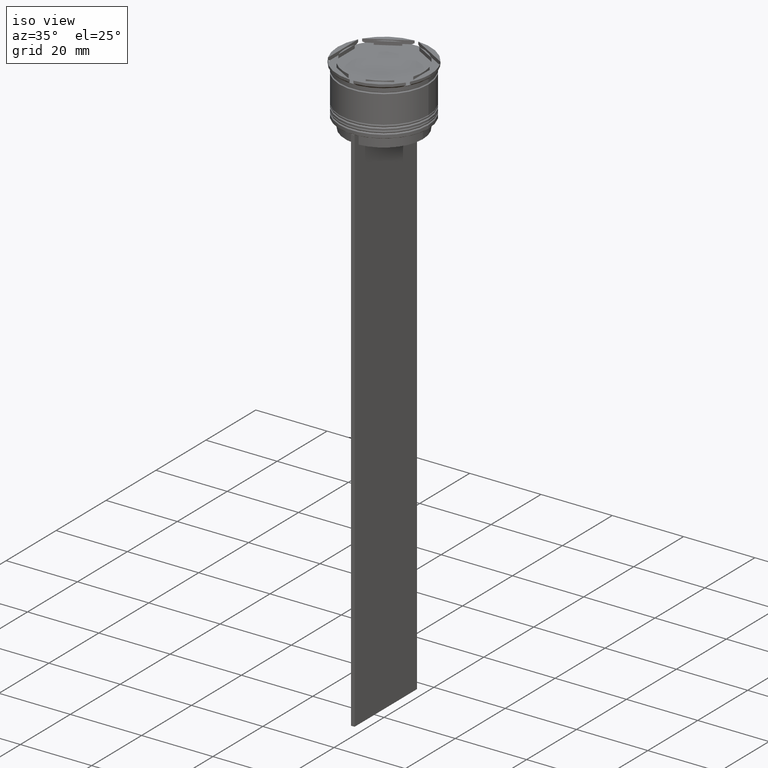
[diagram: clean part render]
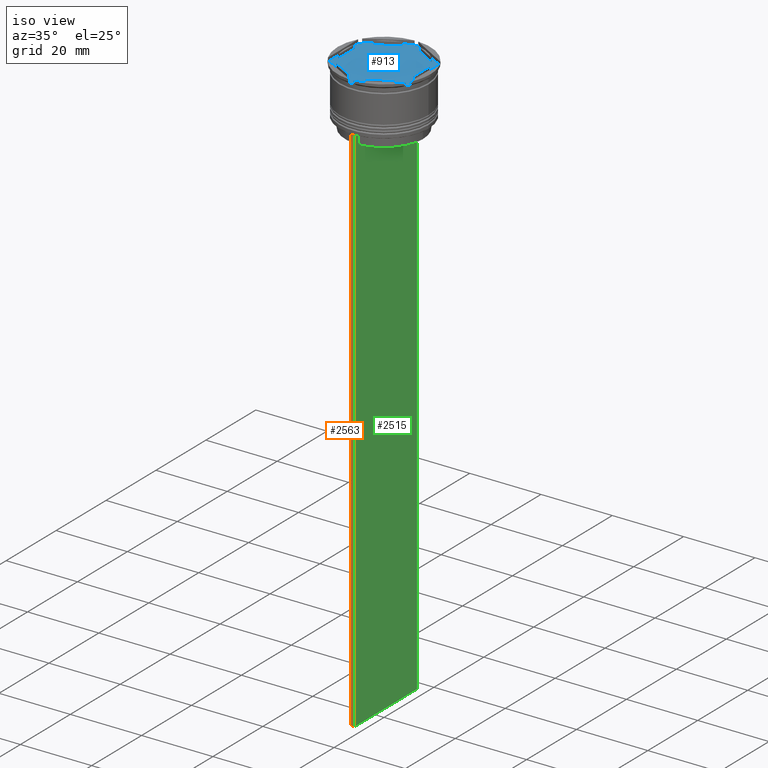
[diagram: same view with three faces highlighted in distinct colors, each labeled with its STEP entity id]
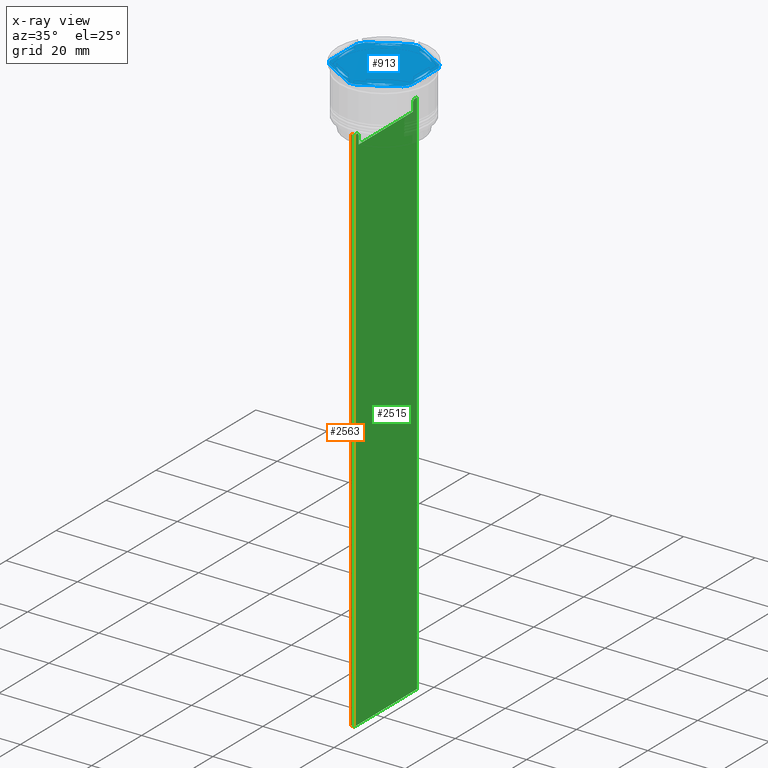
[diagram: x-ray of the same camera — body ghosted, the three highlighted faces saturated]
A machine part, iso view with three faces highlighted in distinct colors.
The next image is the same camera in x-ray (body ghosted, the three faces saturated) — at least one of them is partly hidden behind the body in this view.
Their STEP definitions:

[orange] entity #2563 — the highlighted planar face has unit normal (0, -1, -0).
#199 = VERTEX_POINT ( 'NONE', #1731 ) ;
#219 = CARTESIAN_POINT ( 'NONE',  ( 0.5000000000000000000, -12.49999999999999289, -14.00000000000000178 ) ) ;
#389 = ORIENTED_EDGE ( 'NONE', *, *, #1342, .F. ) ;
#392 = AXIS2_PLACEMENT_3D ( 'NONE', #2810, #1437, #2333 ) ;
#437 = CARTESIAN_POINT ( 'NONE',  ( -0.5000000000000000000, -12.49999999999999289, -163.9999999999999716 ) ) ;
#555 = PLANE ( 'NONE',  #392 ) ;
#713 = EDGE_CURVE ( 'NONE', #2711, #1970, #928, .T. ) ;
#754 = CARTESIAN_POINT ( 'NONE',  ( 0.5000000000000000000, -12.49999999999999289, -14.00000000000000178 ) ) ;
#824 = VECTOR ( 'NONE', #2103, 1000.000000000000000 ) ;
#839 = EDGE_LOOP ( 'NONE', ( #1907, #1083, #389, #2850 ) ) ;
#861 = EDGE_CURVE ( 'NONE', #199, #2698, #1390, .T. ) ;
#901 = CARTESIAN_POINT ( 'NONE',  ( 0.5000000000000000000, -12.49999999999999289, -163.9999999999999716 ) ) ;
#912 = DIRECTION ( 'NONE',  ( 0.000000000000000000, 0.000000000000000000, -1.000000000000000000 ) ) ;
#928 = LINE ( 'NONE', #2486, #2680 ) ;
#1083 = ORIENTED_EDGE ( 'NONE', *, *, #861, .T. ) ;
#1342 = EDGE_CURVE ( 'NONE', #1970, #2698, #2143, .T. ) ;
#1378 = VECTOR ( 'NONE', #1928, 1000.000000000000000 ) ;
#1390 = LINE ( 'NONE', #2339, #1378 ) ;
#1437 = DIRECTION ( 'NONE',  ( 0.000000000000000000, -1.000000000000000000, -0.000000000000000000 ) ) ;
#1652 = LINE ( 'NONE', #754, #824 ) ;
#1676 = EDGE_CURVE ( 'NONE', #199, #2711, #1652, .T. ) ;
#1731 = CARTESIAN_POINT ( 'NONE',  ( -0.5000000000000000000, -12.49999999999999289, -14.00000000000000178 ) ) ;
#1907 = ORIENTED_EDGE ( 'NONE', *, *, #1676, .F. ) ;
#1921 = FACE_OUTER_BOUND ( 'NONE', #839, .T. ) ;
#1928 = DIRECTION ( 'NONE',  ( 0.000000000000000000, 0.000000000000000000, -1.000000000000000000 ) ) ;
#1970 = VERTEX_POINT ( 'NONE', #901 ) ;
#2103 = DIRECTION ( 'NONE',  ( 1.000000000000000000, 0.000000000000000000, 0.000000000000000000 ) ) ;
#2143 = LINE ( 'NONE', #2534, #2268 ) ;
#2268 = VECTOR ( 'NONE', #2305, 1000.000000000000000 ) ;
#2305 = DIRECTION ( 'NONE',  ( -1.000000000000000000, 0.000000000000000000, 0.000000000000000000 ) ) ;
#2333 = DIRECTION ( 'NONE',  ( 0.000000000000000000, 0.000000000000000000, -1.000000000000000000 ) ) ;
#2339 = CARTESIAN_POINT ( 'NONE',  ( -0.5000000000000000000, -12.49999999999999289, 11.01999200639360765 ) ) ;
#2486 = CARTESIAN_POINT ( 'NONE',  ( 0.5000000000000000000, -12.49999999999999289, 11.01999200639360765 ) ) ;
#2534 = CARTESIAN_POINT ( 'NONE',  ( 0.5000000000000000000, -12.49999999999999289, -163.9999999999999716 ) ) ;
#2563 = ADVANCED_FACE ( 'NONE', ( #1921 ), #555, .T. ) ;
#2680 = VECTOR ( 'NONE', #912, 1000.000000000000000 ) ;
#2698 = VERTEX_POINT ( 'NONE', #437 ) ;
#2711 = VERTEX_POINT ( 'NONE', #219 ) ;
#2810 = CARTESIAN_POINT ( 'NONE',  ( 0.5000000000000000000, -12.49999999999999289, 11.01999200639360765 ) ) ;
#2850 = ORIENTED_EDGE ( 'NONE', *, *, #713, .F. ) ;

[blue] entity #913 — the highlighted planar face has unit normal (0, 0, 1).
#1 = DIRECTION ( 'NONE',  ( -0.000000000000000000, -0.000000000000000000, -1.000000000000000000 ) ) ;
#2 = CARTESIAN_POINT ( 'NONE',  ( 0.000000000000000000, 0.000000000000000000, -1.000000000000000000 ) ) ;
#6 = VERTEX_POINT ( 'NONE', #101 ) ;
#24 = EDGE_CURVE ( 'NONE', #1562, #1180, #2044, .T. ) ;
#50 = VERTEX_POINT ( 'NONE', #1019 ) ;
#64 = CARTESIAN_POINT ( 'NONE',  ( 0.000000000000000000, 0.000000000000000000, -1.000000000000000000 ) ) ;
#89 = CARTESIAN_POINT ( 'NONE',  ( 0.000000000000000000, 0.000000000000000000, -1.000000000000000000 ) ) ;
#101 = CARTESIAN_POINT ( 'NONE',  ( -10.49999999999999822, 3.278719262151000624, -1.000000000000000888 ) ) ;
#122 = FACE_BOUND ( 'NONE', #1358, .T. ) ;
#127 = AXIS2_PLACEMENT_3D ( 'NONE', #710, #2490, #2278 ) ;
#129 = CARTESIAN_POINT ( 'NONE',  ( 0.000000000000000000, 0.000000000000000000, -1.000000000000000000 ) ) ;
#150 = CARTESIAN_POINT ( 'NONE',  ( 10.41690475583121156, 7.264853426459550789, -1.000000000000000000 ) ) ;
#179 = LINE ( 'NONE', #1001, #200 ) ;
#190 = CARTESIAN_POINT ( 'NONE',  ( -2.602085213965210642E-15, -12.12435565298214080, -1.000000000000000888 ) ) ;
#200 = VECTOR ( 'NONE', #1266, 999.9999999999998863 ) ;
#209 = VERTEX_POINT ( 'NONE', #150 ) ;
#226 = ORIENTED_EDGE ( 'NONE', *, *, #1933, .T. ) ;
#228 = CARTESIAN_POINT ( 'NONE',  ( 0.000000000000000000, 0.000000000000000000, -1.000000000000000000 ) ) ;
#236 = CARTESIAN_POINT ( 'NONE',  ( 10.49999999999999289, -6.062177826491073063, -1.000000000000000888 ) ) ;
#257 = EDGE_CURVE ( 'NONE', #6, #2455, #372, .T. ) ;
#264 = CIRCLE ( 'NONE', #2266, 11.00000000000000000 ) ;
#273 = ORIENTED_EDGE ( 'NONE', *, *, #331, .F. ) ;
#278 = DIRECTION ( 'NONE',  ( 1.000000000000000000, 0.000000000000000000, 0.000000000000000000 ) ) ;
#282 = LINE ( 'NONE', #949, #958 ) ;
#286 = FACE_BOUND ( 'NONE', #1051, .T. ) ;
#299 = ORIENTED_EDGE ( 'NONE', *, *, #2214, .F. ) ;
#331 = EDGE_CURVE ( 'NONE', #2455, #727, #2581, .T. ) ;
#356 = VECTOR ( 'NONE', #2361, 1000.000000000000114 ) ;
#372 = CIRCLE ( 'NONE', #2329, 11.00000000000000000 ) ;
#400 = ORIENTED_EDGE ( 'NONE', *, *, #1592, .F. ) ;
#410 = CARTESIAN_POINT ( 'NONE',  ( 11.50000000000000000, 6.639528095680698350, -1.000000000000000000 ) ) ;
#421 = CARTESIAN_POINT ( 'NONE',  ( 1.083095244168781557, 12.65373086058254160, -1.000000000000000000 ) ) ;
#424 = LINE ( 'NONE', #828, #500 ) ;
#427 = DIRECTION ( 'NONE',  ( 1.000000000000000000, 0.000000000000000000, 0.000000000000000000 ) ) ;
#449 = CARTESIAN_POINT ( 'NONE',  ( 11.49999999999999822, 5.388877434122992582, -1.000000000000000000 ) ) ;
#457 = EDGE_LOOP ( 'NONE', ( #1819, #1302 ) ) ;
#471 = VERTEX_POINT ( 'NONE', #1668 ) ;
#482 = CARTESIAN_POINT ( 'NONE',  ( 2.410545827099865868, -10.73262637081210791, -1.000000000000000888 ) ) ;
#488 = VERTEX_POINT ( 'NONE', #1419 ) ;
#493 = DIRECTION ( 'NONE',  ( 0.000000000000000000, 0.000000000000000000, 1.000000000000000000 ) ) ;
#494 = VECTOR ( 'NONE', #1513, 999.9999999999998863 ) ;
#500 = VECTOR ( 'NONE', #1063, 1000.000000000000000 ) ;
#561 = EDGE_CURVE ( 'NONE', #2551, #691, #1695, .T. ) ;
#562 = FACE_BOUND ( 'NONE', #2206, .T. ) ;
#576 = EDGE_CURVE ( 'NONE', #1180, #1562, #811, .T. ) ;
#581 = DIRECTION ( 'NONE',  ( -0.000000000000000000, -0.000000000000000000, -1.000000000000000000 ) ) ;
#584 = ORIENTED_EDGE ( 'NONE', *, *, #561, .T. ) ;
#597 = CIRCLE ( 'NONE', #2226, 12.69999999999999929 ) ;
#600 = VECTOR ( 'NONE', #1964, 1000.000000000000000 ) ;
#625 = EDGE_LOOP ( 'NONE', ( #299, #761 ) ) ;
#632 = EDGE_CURVE ( 'NONE', #935, #1326, #1075, .T. ) ;
#642 = DIRECTION ( 'NONE',  ( 1.000000000000000000, 0.000000000000000000, 0.000000000000000000 ) ) ;
#679 = AXIS2_PLACEMENT_3D ( 'NONE', #64, #1900, #735 ) ;
#689 = VECTOR ( 'NONE', #2377, 1000.000000000000000 ) ;
#691 = VERTEX_POINT ( 'NONE', #1918 ) ;
#710 = CARTESIAN_POINT ( 'NONE',  ( 0.000000000000000000, 0.000000000000000000, -1.000000000000000000 ) ) ;
#714 = CARTESIAN_POINT ( 'NONE',  ( 0.000000000000000000, 0.000000000000000000, -1.000000000000000000 ) ) ;
#727 = VERTEX_POINT ( 'NONE', #1770 ) ;
#735 = DIRECTION ( 'NONE',  ( 1.000000000000000000, 0.000000000000000000, -0.000000000000000000 ) ) ;
#761 = ORIENTED_EDGE ( 'NONE', *, *, #2309, .F. ) ;
#801 = ORIENTED_EDGE ( 'NONE', *, *, #1021, .T. ) ;
#802 = DIRECTION ( 'NONE',  ( 0.000000000000000000, 0.000000000000000000, 1.000000000000000000 ) ) ;
#810 = EDGE_CURVE ( 'NONE', #1640, #2629, #1102, .T. ) ;
#811 = LINE ( 'NONE', #190, #494 ) ;
#828 = CARTESIAN_POINT ( 'NONE',  ( -11.50000000000000000, 6.639528095680691244, -1.000000000000000000 ) ) ;
#835 = EDGE_CURVE ( 'NONE', #727, #6, #953, .T. ) ;
#848 = ORIENTED_EDGE ( 'NONE', *, *, #1804, .T. ) ;
#859 = CARTESIAN_POINT ( 'NONE',  ( 0.000000000000000000, 0.000000000000000000, -1.000000000000000000 ) ) ;
#913 = ADVANCED_FACE ( 'NONE', ( #562, #122, #1009, #2285, #286, #1677, #1456 ), #1171, .T. ) ;
#918 = CARTESIAN_POINT ( 'NONE',  ( 0.000000000000000000, 0.000000000000000000, -1.000000000000000000 ) ) ;
#935 = VERTEX_POINT ( 'NONE', #2614 ) ;
#949 = CARTESIAN_POINT ( 'NONE',  ( -11.50000000000000000, -6.639528095680696573, -1.000000000000000000 ) ) ;
#953 = LINE ( 'NONE', #1912, #1523 ) ;
#958 = VECTOR ( 'NONE', #1357, 1000.000000000000227 ) ;
#967 = EDGE_CURVE ( 'NONE', #1490, #1319, #264, .T. ) ;
#987 = CIRCLE ( 'NONE', #1359, 12.69999999999999929 ) ;
#988 = DIRECTION ( 'NONE',  ( 1.000000000000000000, 7.105427357601001859E-15, 0.000000000000000000 ) ) ;
#990 = VERTEX_POINT ( 'NONE', #1777 ) ;
#1001 = CARTESIAN_POINT ( 'NONE',  ( 10.49999999999999467, 6.062177826491072175, -1.000000000000000888 ) ) ;
#1004 = CARTESIAN_POINT ( 'NONE',  ( -11.50000000000000000, 5.388877434122992582, -1.000000000000000000 ) ) ;
#1005 = VECTOR ( 'NONE', #2221, 1000.000000000000114 ) ;
#1009 = FACE_BOUND ( 'NONE', #1880, .T. ) ;
#1019 = CARTESIAN_POINT ( 'NONE',  ( -1.083095244168779780, -12.65373086058253982, -1.000000000000000000 ) ) ;
#1021 = EDGE_CURVE ( 'NONE', #2051, #1657, #1345, .T. ) ;
#1051 = EDGE_LOOP ( 'NONE', ( #2532, #1239, #273 ) ) ;
#1063 = DIRECTION ( 'NONE',  ( 0.000000000000000000, -1.000000000000000000, 0.000000000000000000 ) ) ;
#1070 = CARTESIAN_POINT ( 'NONE',  ( 0.000000000000000000, 13.27905619136138959, -1.000000000000000000 ) ) ;
#1075 = LINE ( 'NONE', #2853, #2359 ) ;
#1086 = ORIENTED_EDGE ( 'NONE', *, *, #2661, .F. ) ;
#1097 = EDGE_CURVE ( 'NONE', #1179, #50, #282, .T. ) ;
#1102 = LINE ( 'NONE', #1990, #2496 ) ;
#1146 = CIRCLE ( 'NONE', #1752, 12.69999999999999929 ) ;
#1150 = AXIS2_PLACEMENT_3D ( 'NONE', #918, #1786, #1573 ) ;
#1153 = DIRECTION ( 'NONE',  ( 0.000000000000000000, 0.000000000000000000, 1.000000000000000000 ) ) ;
#1167 = ORIENTED_EDGE ( 'NONE', *, *, #1521, .F. ) ;
#1171 = PLANE ( 'NONE',  #679 ) ;
#1177 = CARTESIAN_POINT ( 'NONE',  ( 11.49999999999999822, -5.388877434122996135, -1.000000000000000000 ) ) ;
#1179 = VERTEX_POINT ( 'NONE', #2469 ) ;
#1180 = VERTEX_POINT ( 'NONE', #2700 ) ;
#1185 = CARTESIAN_POINT ( 'NONE',  ( 0.000000000000000000, 0.000000000000000000, -1.000000000000000000 ) ) ;
#1209 = CARTESIAN_POINT ( 'NONE',  ( -11.00000000000000000, 0.000000000000000000, -1.000000000000000000 ) ) ;
#1211 = EDGE_CURVE ( 'NONE', #1326, #935, #2313, .T. ) ;
#1239 = ORIENTED_EDGE ( 'NONE', *, *, #835, .F. ) ;
#1266 = DIRECTION ( 'NONE',  ( 0.8660254037844387076, -0.4999999999999999445, 0.000000000000000000 ) ) ;
#1272 = ORIENTED_EDGE ( 'NONE', *, *, #2503, .F. ) ;
#1299 = DIRECTION ( 'NONE',  ( -0.000000000000000000, -0.000000000000000000, -1.000000000000000000 ) ) ;
#1302 = ORIENTED_EDGE ( 'NONE', *, *, #632, .F. ) ;
#1311 = DIRECTION ( 'NONE',  ( 0.000000000000000000, 0.000000000000000000, 1.000000000000000000 ) ) ;
#1318 = VERTEX_POINT ( 'NONE', #1004 ) ;
#1319 = VERTEX_POINT ( 'NONE', #1909 ) ;
#1326 = VERTEX_POINT ( 'NONE', #2784 ) ;
#1328 = EDGE_CURVE ( 'NONE', #2051, #2255, #1146, .T. ) ;
#1330 = DIRECTION ( 'NONE',  ( 0.000000000000000000, 0.000000000000000000, 1.000000000000000000 ) ) ;
#1345 = LINE ( 'NONE', #1070, #1005 ) ;
#1357 = DIRECTION ( 'NONE',  ( 0.8660254037844387076, -0.4999999999999997780, 0.000000000000000000 ) ) ;
#1358 = EDGE_LOOP ( 'NONE', ( #2157, #1167 ) ) ;
#1359 = AXIS2_PLACEMENT_3D ( 'NONE', #2188, #1299, #1784 ) ;
#1396 = DIRECTION ( 'NONE',  ( -1.430775808321104180E-16, -1.000000000000000000, 0.000000000000000000 ) ) ;
#1415 = AXIS2_PLACEMENT_3D ( 'NONE', #2, #493, #278 ) ;
#1419 = CARTESIAN_POINT ( 'NONE',  ( -2.410545827099867200, 10.73262637081210613, -1.000000000000000888 ) ) ;
#1452 = DIRECTION ( 'NONE',  ( 1.000000000000000000, 0.000000000000000000, 0.000000000000000000 ) ) ;
#1456 = FACE_OUTER_BOUND ( 'NONE', #1796, .T. ) ;
#1470 = DIRECTION ( 'NONE',  ( -0.000000000000000000, -0.000000000000000000, -1.000000000000000000 ) ) ;
#1490 = VERTEX_POINT ( 'NONE', #2050 ) ;
#1513 = DIRECTION ( 'NONE',  ( -0.8660254037844387076, -0.4999999999999999445, 0.000000000000000000 ) ) ;
#1521 = EDGE_CURVE ( 'NONE', #1319, #1490, #2721, .T. ) ;
#1523 = VECTOR ( 'NONE', #2788, 1000.000000000000000 ) ;
#1527 = AXIS2_PLACEMENT_3D ( 'NONE', #129, #581, #988 ) ;
#1538 = EDGE_CURVE ( 'NONE', #990, #1944, #2458, .T. ) ;
#1540 = ORIENTED_EDGE ( 'NONE', *, *, #576, .F. ) ;
#1554 = CARTESIAN_POINT ( 'NONE',  ( -1.083095244168783333, 12.65373086058254160, -1.000000000000000000 ) ) ;
#1562 = VERTEX_POINT ( 'NONE', #482 ) ;
#1567 = CIRCLE ( 'NONE', #1527, 12.69999999999999929 ) ;
#1573 = DIRECTION ( 'NONE',  ( 1.000000000000000000, -1.776356839400250465E-14, 0.000000000000000000 ) ) ;
#1592 = EDGE_CURVE ( 'NONE', #209, #2629, #2541, .T. ) ;
#1617 = AXIS2_PLACEMENT_3D ( 'NONE', #1185, #1647, #2071 ) ;
#1626 = CARTESIAN_POINT ( 'NONE',  ( -10.41690475583121689, 7.264853426459546348, -1.000000000000000000 ) ) ;
#1640 = VERTEX_POINT ( 'NONE', #1177 ) ;
#1647 = DIRECTION ( 'NONE',  ( 0.000000000000000000, 0.000000000000000000, 1.000000000000000000 ) ) ;
#1653 = CARTESIAN_POINT ( 'NONE',  ( -11.50000000000000000, -5.388877434122992582, -1.000000000000000000 ) ) ;
#1657 = VERTEX_POINT ( 'NONE', #1626 ) ;
#1668 = CARTESIAN_POINT ( 'NONE',  ( -8.089454172900135021, 7.453907108661106840, -1.000000000000000888 ) ) ;
#1677 = FACE_BOUND ( 'NONE', #625, .T. ) ;
#1685 = CIRCLE ( 'NONE', #1829, 12.69999999999999929 ) ;
#1695 = LINE ( 'NONE', #2186, #356 ) ;
#1713 = DIRECTION ( 'NONE',  ( -0.8660254037844384856, 0.5000000000000002220, 0.000000000000000000 ) ) ;
#1729 = EDGE_CURVE ( 'NONE', #1179, #2510, #1567, .T. ) ;
#1752 = AXIS2_PLACEMENT_3D ( 'NONE', #2322, #1470, #2813 ) ;
#1764 = DIRECTION ( 'NONE',  ( 1.000000000000000000, 0.000000000000000000, 0.000000000000000000 ) ) ;
#1765 = AXIS2_PLACEMENT_3D ( 'NONE', #89, #802, #1452 ) ;
#1770 = CARTESIAN_POINT ( 'NONE',  ( -10.49999999999999822, -3.278719262151000624, -1.000000000000000888 ) ) ;
#1777 = CARTESIAN_POINT ( 'NONE',  ( 8.089454172900138573, 7.453907108661105063, -1.000000000000000888 ) ) ;
#1784 = DIRECTION ( 'NONE',  ( 1.000000000000000000, 0.000000000000000000, 0.000000000000000000 ) ) ;
#1786 = DIRECTION ( 'NONE',  ( -0.000000000000000000, -0.000000000000000000, -1.000000000000000000 ) ) ;
#1796 = EDGE_LOOP ( 'NONE', ( #2613, #400, #226, #2751, #801, #1086, #848, #1901, #2731, #1982, #584, #1826 ) ) ;
#1804 = EDGE_CURVE ( 'NONE', #1318, #2510, #424, .T. ) ;
#1819 = ORIENTED_EDGE ( 'NONE', *, *, #1211, .F. ) ;
#1821 = DIRECTION ( 'NONE',  ( 1.000000000000000000, 0.000000000000000000, 0.000000000000000000 ) ) ;
#1826 = ORIENTED_EDGE ( 'NONE', *, *, #2750, .F. ) ;
#1829 = AXIS2_PLACEMENT_3D ( 'NONE', #1992, #1, #642 ) ;
#1880 = EDGE_LOOP ( 'NONE', ( #1913, #1540 ) ) ;
#1895 = EDGE_CURVE ( 'NONE', #2551, #50, #597, .T. ) ;
#1900 = DIRECTION ( 'NONE',  ( 0.000000000000000000, 0.000000000000000000, 1.000000000000000000 ) ) ;
#1901 = ORIENTED_EDGE ( 'NONE', *, *, #1729, .F. ) ;
#1909 = CARTESIAN_POINT ( 'NONE',  ( 10.49999999999999467, 3.278719262151012170, -1.000000000000000888 ) ) ;
#1912 = CARTESIAN_POINT ( 'NONE',  ( -10.49999999999999822, 6.062177826491068622, -1.000000000000000888 ) ) ;
#1913 = ORIENTED_EDGE ( 'NONE', *, *, #24, .F. ) ;
#1918 = CARTESIAN_POINT ( 'NONE',  ( 10.41690475583121867, -7.264853426459537467, -1.000000000000000000 ) ) ;
#1920 = DIRECTION ( 'NONE',  ( -0.000000000000000000, -0.000000000000000000, -1.000000000000000000 ) ) ;
#1933 = EDGE_CURVE ( 'NONE', #209, #2255, #2842, .T. ) ;
#1942 = AXIS2_PLACEMENT_3D ( 'NONE', #714, #1153, #1821 ) ;
#1944 = VERTEX_POINT ( 'NONE', #2854 ) ;
#1964 = DIRECTION ( 'NONE',  ( -0.8660254037844388186, 0.4999999999999997224, 0.000000000000000000 ) ) ;
#1982 = ORIENTED_EDGE ( 'NONE', *, *, #1895, .F. ) ;
#1990 = CARTESIAN_POINT ( 'NONE',  ( 11.49999999999999822, -6.639528095680694797, -1.000000000000000000 ) ) ;
#1992 = CARTESIAN_POINT ( 'NONE',  ( 0.000000000000000000, 0.000000000000000000, -1.000000000000000000 ) ) ;
#2032 = VECTOR ( 'NONE', #1396, 1000.000000000000000 ) ;
#2044 = CIRCLE ( 'NONE', #1765, 11.00000000000000000 ) ;
#2050 = CARTESIAN_POINT ( 'NONE',  ( 10.49999999999999467, -3.278719262151014835, -1.000000000000000888 ) ) ;
#2051 = VERTEX_POINT ( 'NONE', #1554 ) ;
#2071 = DIRECTION ( 'NONE',  ( 1.000000000000000000, 0.000000000000000000, 0.000000000000000000 ) ) ;
#2105 = CARTESIAN_POINT ( 'NONE',  ( 1.083095244168774673, -12.65373086058253982, -1.000000000000000000 ) ) ;
#2150 = CARTESIAN_POINT ( 'NONE',  ( -1.734723475976807094E-15, 12.12435565298214080, -1.000000000000000888 ) ) ;
#2157 = ORIENTED_EDGE ( 'NONE', *, *, #967, .F. ) ;
#2186 = CARTESIAN_POINT ( 'NONE',  ( 5.612359739892467248E-18, -13.27905619136138959, -1.000000000000000000 ) ) ;
#2188 = CARTESIAN_POINT ( 'NONE',  ( 0.000000000000000000, 0.000000000000000000, -1.000000000000000000 ) ) ;
#2206 = EDGE_LOOP ( 'NONE', ( #2482, #1272 ) ) ;
#2214 = EDGE_CURVE ( 'NONE', #488, #471, #2372, .T. ) ;
#2221 = DIRECTION ( 'NONE',  ( -0.8660254037844385966, -0.5000000000000001110, 0.000000000000000000 ) ) ;
#2226 = AXIS2_PLACEMENT_3D ( 'NONE', #2435, #1920, #2809 ) ;
#2255 = VERTEX_POINT ( 'NONE', #421 ) ;
#2266 = AXIS2_PLACEMENT_3D ( 'NONE', #228, #1330, #1764 ) ;
#2278 = DIRECTION ( 'NONE',  ( 1.000000000000000000, 0.000000000000000000, 0.000000000000000000 ) ) ;
#2285 = FACE_BOUND ( 'NONE', #457, .T. ) ;
#2309 = EDGE_CURVE ( 'NONE', #471, #488, #2807, .T. ) ;
#2313 = CIRCLE ( 'NONE', #1942, 11.00000000000000000 ) ;
#2322 = CARTESIAN_POINT ( 'NONE',  ( 0.000000000000000000, 0.000000000000000000, -1.000000000000000000 ) ) ;
#2329 = AXIS2_PLACEMENT_3D ( 'NONE', #859, #1311, #427 ) ;
#2359 = VECTOR ( 'NONE', #1713, 1000.000000000000000 ) ;
#2361 = DIRECTION ( 'NONE',  ( 0.8660254037844385966, 0.4999999999999999445, 0.000000000000000000 ) ) ;
#2372 = CIRCLE ( 'NONE', #1617, 11.00000000000000000 ) ;
#2377 = DIRECTION ( 'NONE',  ( 0.8660254037844385966, 0.5000000000000001110, -0.000000000000000000 ) ) ;
#2435 = CARTESIAN_POINT ( 'NONE',  ( 0.000000000000000000, 0.000000000000000000, -1.000000000000000000 ) ) ;
#2455 = VERTEX_POINT ( 'NONE', #1209 ) ;
#2458 = CIRCLE ( 'NONE', #127, 11.00000000000000000 ) ;
#2469 = CARTESIAN_POINT ( 'NONE',  ( -10.41690475583121334, -7.264853426459548125, -1.000000000000000000 ) ) ;
#2482 = ORIENTED_EDGE ( 'NONE', *, *, #1538, .F. ) ;
#2490 = DIRECTION ( 'NONE',  ( 0.000000000000000000, 0.000000000000000000, 1.000000000000000000 ) ) ;
#2496 = VECTOR ( 'NONE', #2884, 1000.000000000000000 ) ;
#2503 = EDGE_CURVE ( 'NONE', #1944, #990, #179, .T. ) ;
#2510 = VERTEX_POINT ( 'NONE', #1653 ) ;
#2532 = ORIENTED_EDGE ( 'NONE', *, *, #257, .F. ) ;
#2541 = CIRCLE ( 'NONE', #1150, 12.69999999999999929 ) ;
#2551 = VERTEX_POINT ( 'NONE', #2105 ) ;
#2581 = CIRCLE ( 'NONE', #1415, 11.00000000000000000 ) ;
#2613 = ORIENTED_EDGE ( 'NONE', *, *, #810, .T. ) ;
#2614 = CARTESIAN_POINT ( 'NONE',  ( -2.410545827099876082, -10.73262637081210435, -1.000000000000000888 ) ) ;
#2629 = VERTEX_POINT ( 'NONE', #449 ) ;
#2661 = EDGE_CURVE ( 'NONE', #1318, #1657, #987, .T. ) ;
#2700 = CARTESIAN_POINT ( 'NONE',  ( 8.089454172900135021, -7.453907108661109504, -1.000000000000000888 ) ) ;
#2721 = LINE ( 'NONE', #236, #2032 ) ;
#2731 = ORIENTED_EDGE ( 'NONE', *, *, #1097, .T. ) ;
#2750 = EDGE_CURVE ( 'NONE', #1640, #691, #1685, .T. ) ;
#2751 = ORIENTED_EDGE ( 'NONE', *, *, #1328, .F. ) ;
#2784 = CARTESIAN_POINT ( 'NONE',  ( -8.089454172900133244, -7.453907108661111280, -1.000000000000000888 ) ) ;
#2788 = DIRECTION ( 'NONE',  ( 0.000000000000000000, 1.000000000000000000, 0.000000000000000000 ) ) ;
#2807 = LINE ( 'NONE', #2150, #689 ) ;
#2809 = DIRECTION ( 'NONE',  ( 1.000000000000000000, 0.000000000000000000, 0.000000000000000000 ) ) ;
#2813 = DIRECTION ( 'NONE',  ( 1.000000000000000000, 1.243449787580175325E-14, 0.000000000000000000 ) ) ;
#2842 = LINE ( 'NONE', #410, #600 ) ;
#2853 = CARTESIAN_POINT ( 'NONE',  ( -10.49999999999999822, -6.062177826491068622, -1.000000000000000888 ) ) ;
#2854 = CARTESIAN_POINT ( 'NONE',  ( 2.410545827099861871, 10.73262637081210791, -1.000000000000000888 ) ) ;
#2884 = DIRECTION ( 'NONE',  ( 1.306360520641008153E-16, 1.000000000000000000, 0.000000000000000000 ) ) ;

[green] entity #2515 — the highlighted planar face has unit normal (-1, 0, 0).
#38 = VERTEX_POINT ( 'NONE', #115 ) ;
#80 = ORIENTED_EDGE ( 'NONE', *, *, #1348, .T. ) ;
#86 = DIRECTION ( 'NONE',  ( 0.000000000000000000, 0.000000000000000000, -1.000000000000000000 ) ) ;
#100 = VERTEX_POINT ( 'NONE', #1003 ) ;
#102 = CARTESIAN_POINT ( 'NONE',  ( 0.5000000000000000000, -11.38902980942626719, -14.00000000000000178 ) ) ;
#115 = CARTESIAN_POINT ( 'NONE',  ( 0.5000000000000000000, -10.88852607105296322, -14.50000000000000000 ) ) ;
#219 = CARTESIAN_POINT ( 'NONE',  ( 0.5000000000000000000, -12.49999999999999289, -14.00000000000000178 ) ) ;
#246 = DIRECTION ( 'NONE',  ( 0.000000000000000000, 0.000000000000000000, -1.000000000000000000 ) ) ;
#255 = EDGE_CURVE ( 'NONE', #1343, #2350, #2653, .T. ) ;
#337 = CARTESIAN_POINT ( 'NONE',  ( 0.5000000000000000000, -11.22219891450652973, -14.16667035398018903 ) ) ;
#340 = ORIENTED_EDGE ( 'NONE', *, *, #461, .T. ) ;
#359 = CARTESIAN_POINT ( 'NONE',  ( 0.5000000000000000000, -10.88852607105296322, 0.000000000000000000 ) ) ;
#371 = CARTESIAN_POINT ( 'NONE',  ( 0.5000000000000000000, -12.49999999999999289, -14.00000000000000178 ) ) ;
#383 = CARTESIAN_POINT ( 'NONE',  ( 0.5000000000000000000, -12.49999999999999289, 11.01999200639360765 ) ) ;
#405 = VECTOR ( 'NONE', #2090, 1000.000000000000000 ) ;
#411 = CARTESIAN_POINT ( 'NONE',  ( 0.5000000000000000000, -12.49999999999999289, -14.00000000000000178 ) ) ;
#461 = EDGE_CURVE ( 'NONE', #2265, #2711, #798, .T. ) ;
#473 = EDGE_CURVE ( 'NONE', #702, #2030, #1215, .T. ) ;
#519 = CARTESIAN_POINT ( 'NONE',  ( 0.5000000000000000000, 10.90000000000000213, -17.00000000000000000 ) ) ;
#571 = CARTESIAN_POINT ( 'NONE',  ( 0.5000000000000000000, -10.88852607105296322, -14.50000000000000000 ) ) ;
#572 = CARTESIAN_POINT ( 'NONE',  ( 0.5000000000000000000, 10.88852607105296322, -14.50000000000000000 ) ) ;
#574 = VECTOR ( 'NONE', #1078, 1000.000000000000000 ) ;
#601 = CARTESIAN_POINT ( 'NONE',  ( 0.5000000000000000000, -12.49999999999999289, -163.9999999999999716 ) ) ;
#644 = CARTESIAN_POINT ( 'NONE',  ( 0.5000000000000000000, 11.05536450345590538, -14.33333719074559376 ) ) ;
#702 = VERTEX_POINT ( 'NONE', #2004 ) ;
#713 = EDGE_CURVE ( 'NONE', #2711, #1970, #928, .T. ) ;
#798 = LINE ( 'NONE', #1204, #405 ) ;
#825 = EDGE_CURVE ( 'NONE', #2350, #100, #1566, .T. ) ;
#830 = DIRECTION ( 'NONE',  ( -1.000000000000000000, 0.000000000000000000, 0.000000000000000000 ) ) ;
#901 = CARTESIAN_POINT ( 'NONE',  ( 0.5000000000000000000, -12.49999999999999289, -163.9999999999999716 ) ) ;
#912 = DIRECTION ( 'NONE',  ( 0.000000000000000000, 0.000000000000000000, -1.000000000000000000 ) ) ;
#928 = LINE ( 'NONE', #2486, #2680 ) ;
#939 = ORIENTED_EDGE ( 'NONE', *, *, #255, .T. ) ;
#946 = CARTESIAN_POINT ( 'NONE',  ( 0.5000000000000000000, -12.49999999999999289, -14.00000000000000178 ) ) ;
#1003 = CARTESIAN_POINT ( 'NONE',  ( 0.5000000000000000000, 10.88852607105296144, -17.00000000000000000 ) ) ;
#1012 = DIRECTION ( 'NONE',  ( 0.000000000000000000, -1.000000000000000000, 0.000000000000000000 ) ) ;
#1018 = VERTEX_POINT ( 'NONE', #1560 ) ;
#1037 = ORIENTED_EDGE ( 'NONE', *, *, #2292, .T. ) ;
#1078 = DIRECTION ( 'NONE',  ( 0.000000000000000000, -1.000000000000000000, 0.000000000000000000 ) ) ;
#1100 = VECTOR ( 'NONE', #246, 1000.000000000000000 ) ;
#1105 = LINE ( 'NONE', #411, #574 ) ;
#1106 = VECTOR ( 'NONE', #2248, 1000.000000000000000 ) ;
#1164 = LINE ( 'NONE', #946, #1106 ) ;
#1204 = CARTESIAN_POINT ( 'NONE',  ( 0.5000000000000000000, -12.49999999999999289, -14.00000000000000178 ) ) ;
#1208 = CARTESIAN_POINT ( 'NONE',  ( 0.5000000000000000000, -11.05536450423839234, -14.33333718996393102 ) ) ;
#1215 = LINE ( 'NONE', #1406, #1233 ) ;
#1225 = VERTEX_POINT ( 'NONE', #1877 ) ;
#1226 = EDGE_CURVE ( 'NONE', #38, #1225, #1916, .T. ) ;
#1233 = VECTOR ( 'NONE', #86, 1000.000000000000000 ) ;
#1256 = DIRECTION ( 'NONE',  ( 0.000000000000000000, -1.000000000000000000, 0.000000000000000000 ) ) ;
#1343 = VERTEX_POINT ( 'NONE', #2799 ) ;
#1348 = EDGE_CURVE ( 'NONE', #702, #1534, #2368, .T. ) ;
#1404 = AXIS2_PLACEMENT_3D ( 'NONE', #383, #830, #2364 ) ;
#1406 = CARTESIAN_POINT ( 'NONE',  ( 0.5000000000000000000, 12.50000000000000711, 11.01999200639360765 ) ) ;
#1429 = VECTOR ( 'NONE', #1012, 1000.000000000000000 ) ;
#1466 = FACE_OUTER_BOUND ( 'NONE', #2459, .T. ) ;
#1526 = LINE ( 'NONE', #359, #1662 ) ;
#1534 = VERTEX_POINT ( 'NONE', #2476 ) ;
#1560 = CARTESIAN_POINT ( 'NONE',  ( 0.5000000000000000000, -10.88852607105296144, -17.00000000000000000 ) ) ;
#1566 = LINE ( 'NONE', #2244, #1100 ) ;
#1568 = CARTESIAN_POINT ( 'NONE',  ( 0.5000000000000000000, 12.50000000000000711, -163.9999999999999716 ) ) ;
#1574 = EDGE_CURVE ( 'NONE', #1225, #2265, #1164, .T. ) ;
#1662 = VECTOR ( 'NONE', #1914, 1000.000000000000000 ) ;
#1741 = CARTESIAN_POINT ( 'NONE',  ( 0.5000000000000000000, 11.38902980942626719, -14.00000000000000178 ) ) ;
#1877 = CARTESIAN_POINT ( 'NONE',  ( 0.5000000000000000000, -11.38902980942626719, -14.00000000000000178 ) ) ;
#1914 = DIRECTION ( 'NONE',  ( -0.000000000000000000, -0.000000000000000000, 1.000000000000000000 ) ) ;
#1916 = B_SPLINE_CURVE_WITH_KNOTS ( 'NONE', 3,
 ( #571, #1208, #337, #102 ),
 .UNSPECIFIED., .F., .F.,
 ( 4, 4 ),
 ( 0.05041323384703226551, 0.05112713601261605068 ),
 .UNSPECIFIED. ) ;
#1966 = VECTOR ( 'NONE', #2545, 1000.000000000000000 ) ;
#1970 = VERTEX_POINT ( 'NONE', #901 ) ;
#2004 = CARTESIAN_POINT ( 'NONE',  ( 0.5000000000000000000, 12.50000000000000711, -14.00000000000000178 ) ) ;
#2027 = ORIENTED_EDGE ( 'NONE', *, *, #713, .T. ) ;
#2030 = VERTEX_POINT ( 'NONE', #1568 ) ;
#2089 = EDGE_CURVE ( 'NONE', #100, #1018, #2746, .T. ) ;
#2090 = DIRECTION ( 'NONE',  ( 0.000000000000000000, -1.000000000000000000, 0.000000000000000000 ) ) ;
#2119 = LINE ( 'NONE', #601, #1966 ) ;
#2135 = CARTESIAN_POINT ( 'NONE',  ( 0.5000000000000000000, -12.38991525394746773, -14.00000000000000178 ) ) ;
#2155 = PLANE ( 'NONE',  #1404 ) ;
#2178 = ORIENTED_EDGE ( 'NONE', *, *, #2535, .T. ) ;
#2244 = CARTESIAN_POINT ( 'NONE',  ( 0.5000000000000000000, 10.88852607105296322, 0.000000000000000000 ) ) ;
#2248 = DIRECTION ( 'NONE',  ( 0.000000000000000000, -1.000000000000000000, 0.000000000000000000 ) ) ;
#2265 = VERTEX_POINT ( 'NONE', #2135 ) ;
#2270 = ORIENTED_EDGE ( 'NONE', *, *, #2089, .T. ) ;
#2292 = EDGE_CURVE ( 'NONE', #1018, #38, #1526, .T. ) ;
#2311 = ORIENTED_EDGE ( 'NONE', *, *, #2737, .T. ) ;
#2350 = VERTEX_POINT ( 'NONE', #572 ) ;
#2364 = DIRECTION ( 'NONE',  ( 0.000000000000000000, 0.000000000000000000, 1.000000000000000000 ) ) ;
#2366 = ORIENTED_EDGE ( 'NONE', *, *, #1574, .T. ) ;
#2368 = LINE ( 'NONE', #371, #2540 ) ;
#2383 = CARTESIAN_POINT ( 'NONE',  ( 0.5000000000000000000, 10.88852607105296322, -14.50000000000000000 ) ) ;
#2459 = EDGE_LOOP ( 'NONE', ( #2311, #939, #2819, #2270, #1037, #2811, #2366, #340, #2027, #2178, #2690, #80 ) ) ;
#2476 = CARTESIAN_POINT ( 'NONE',  ( 0.5000000000000000000, 12.38991525394746773, -14.00000000000000178 ) ) ;
#2486 = CARTESIAN_POINT ( 'NONE',  ( 0.5000000000000000000, -12.49999999999999289, 11.01999200639360765 ) ) ;
#2515 = ADVANCED_FACE ( 'NONE', ( #1466 ), #2155, .F. ) ;
#2535 = EDGE_CURVE ( 'NONE', #1970, #2030, #2119, .T. ) ;
#2540 = VECTOR ( 'NONE', #1256, 1000.000000000000000 ) ;
#2545 = DIRECTION ( 'NONE',  ( 0.000000000000000000, 1.000000000000000000, 0.000000000000000000 ) ) ;
#2636 = CARTESIAN_POINT ( 'NONE',  ( 0.5000000000000000000, 11.22219891375843304, -14.16667035472756808 ) ) ;
#2653 = B_SPLINE_CURVE_WITH_KNOTS ( 'NONE', 3,
 ( #1741, #2636, #644, #2383 ),
 .UNSPECIFIED., .F., .F.,
 ( 4, 4 ),
 ( 0.01935560801904634073, 0.02006307108468586772 ),
 .UNSPECIFIED. ) ;
#2680 = VECTOR ( 'NONE', #912, 1000.000000000000000 ) ;
#2690 = ORIENTED_EDGE ( 'NONE', *, *, #473, .F. ) ;
#2711 = VERTEX_POINT ( 'NONE', #219 ) ;
#2737 = EDGE_CURVE ( 'NONE', #1534, #1343, #1105, .T. ) ;
#2746 = LINE ( 'NONE', #519, #1429 ) ;
#2799 = CARTESIAN_POINT ( 'NONE',  ( 0.5000000000000000000, 11.38902980942626719, -14.00000000000000178 ) ) ;
#2811 = ORIENTED_EDGE ( 'NONE', *, *, #1226, .T. ) ;
#2819 = ORIENTED_EDGE ( 'NONE', *, *, #825, .T. ) ;